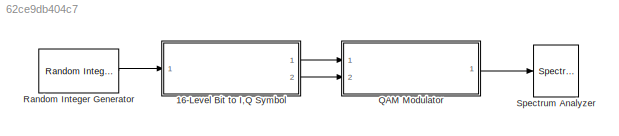
MODEL slx_62ce9db404c7
KIND model
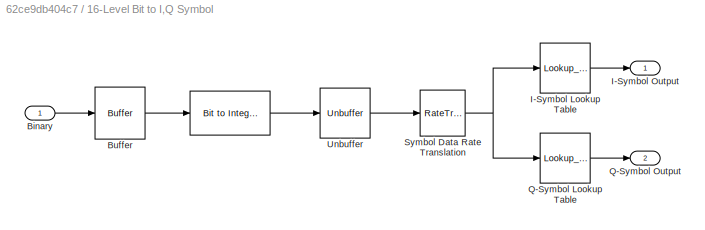
BLOCK [SubSystem] 16-Level Bit to I,Q Symbol
  Ports = [1, 2]
  RequestExecContextInheritance = off
BLOCK [Reference] 16-Level Bit to I,Q Symbol/   REF=commutil2/Bit to Integer
Converter
  Ports = [1, 1]
  SourceBlock = commutil2/Bit to Integer\nConverter
  SourceType = Bit to Integer Converter
  bitOrder = MSB first
  nbits = 4
  outDtype = Inherit via internal rule
  outDtypeSigned = Inherit via internal rule
  signedOutputValues = Unsigned
BLOCK [Inport] 16-Level Bit to I,Q Symbol/Binary
  IconDisplay = Port number
BLOCK [Buffer] 16-Level Bit to I,Q Symbol/Buffer
  N = 4
  TreatMby1Signals = One channel
BLOCK [Lookup_n-D] 16-Level Bit to I,Q Symbol/I-Symbol Lookup Table
  BreakpointsForDimension1 = [0,1,2,3,4,5,6,7,8,9,10,11,12,13,14,15]
  InternalRulePriority = Speed
  NumberOfTableDimensions = 1
  Ports = [1, 1]
  RndMeth = Simplest
  Table = [-1,-3,-1,-3,1,1,3,3,-1,-1,-3,-3,1,3,1,3]
BLOCK [Outport] 16-Level Bit to I,Q Symbol/I-Symbol Output
  IconDisplay = Port number
BLOCK [Lookup_n-D] 16-Level Bit to I,Q Symbol/Q-Symbol Lookup Table
  BreakpointsForDimension1 = [0,1,2,3,4,5,6,7,8,9,10,11,12,13,14,15]
  InternalRulePriority = Speed
  NumberOfTableDimensions = 1
  Ports = [1, 1]
  RndMeth = Simplest
  Table = [1,1,3,3,1,3,1,3,-1,-3,-1,-3,-1,-1,-3,-3]
BLOCK [Outport] 16-Level Bit to I,Q Symbol/Q-Symbol Output
  IconDisplay = Port number
  Port = 2
BLOCK [RateTransition] 16-Level Bit to I,Q Symbol/Symbol Data Rate Translation
  OutPortSampleTime = 4e-3
BLOCK [Unbuffer] 16-Level Bit to I,Q Symbol/Unbuffer
  Ports = [1, 1]
  SampleBasedProcessing = Same as frame based
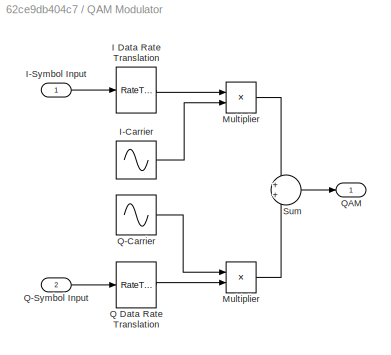
BLOCK [SubSystem] QAM Modulator
  Ports = [2, 1]
  RequestExecContextInheritance = off
BLOCK [Product] QAM Modulator/ Multiplier 
  InputSameDT = off
  OutDataTypeStr = Inherit: Inherit via internal rule
  Ports = [2, 1]
  SaturateOnIntegerOverflow = off
BLOCK [RateTransition] QAM Modulator/I Data Rate Translation
  OutPortSampleTime = 2e-6
BLOCK [Sin] QAM Modulator/I-Carrier
  Amplitude = 5
  Frequency = 40000*pi
  Phase = pi/2
  Ports = [0, 1]
  SampleTime = 2e-6
  VectorParams1D = off
BLOCK [Inport] QAM Modulator/I-Symbol Input
  IconDisplay = Port number
BLOCK [Product] QAM Modulator/Multiplier
  InputSameDT = off
  OutDataTypeStr = Inherit: Inherit via internal rule
  Ports = [2, 1]
  SaturateOnIntegerOverflow = off
BLOCK [RateTransition] QAM Modulator/Q Data Rate Translation
  OutPortSampleTime = 2e-6
BLOCK [Sin] QAM Modulator/Q-Carrier
  Amplitude = 5
  Frequency = 40000*pi
  Ports = [0, 1]
  SampleTime = 2e-6
  VectorParams1D = off
BLOCK [Inport] QAM Modulator/Q-Symbol Input
  IconDisplay = Port number
  Port = 2
BLOCK [Outport] QAM Modulator/QAM
  IconDisplay = Port number
BLOCK [Sum] QAM Modulator/Sum
  IconShape = round
  InputSameDT = off
  OutDataTypeStr = Inherit: Inherit via internal rule
  Ports = [2, 1]
  SaturateOnIntegerOverflow = off
BLOCK [Reference] Random Integer Generator  REF=commrandsrc2/Random Integer
Generator
  Ports = [0, 1]
  SourceBlock = commrandsrc2/Random Integer\nGenerator
  SourceType = Random Integer Generator
  Ts = 1e-3
  frameBased = off
  mul = 2
  orient = off
  outDataType = double
  sampPerFrame = 1
  seed = randseed
BLOCK [SpectrumAnalyzer] Spectrum Analyzer
  Ports = [1]
  ScopeSpecificationString = spbscopes.SpectrumAnalyzerBlockCfg('CurrentConfiguration', extmgr.ConfigurationSet(extmgr.Configuration('Core','General UI',true,'FigureColor',[0.313725490196078 0.313725490196078 0.313725490196078]),extmgr.Configuration('Core','Source UI',true),extmgr.Configuration('Sources','WiredSimulink',true),extmgr.Configuration('Visuals','Spectrum',true,'AxesProperties',struct('Color',[0 0 0],'XColor',[0.68...<+6989ch>
LINE 16-Level Bit to I,Q Symbol/ :1 -> 16-Level Bit to I,Q Symbol/Unbuffer:1
LINE 16-Level Bit to I,Q Symbol/Binary:1 -> 16-Level Bit to I,Q Symbol/Buffer:1
LINE 16-Level Bit to I,Q Symbol/Buffer:1 -> 16-Level Bit to I,Q Symbol/ :1
LINE 16-Level Bit to I,Q Symbol/I-Symbol Lookup Table:1 -> 16-Level Bit to I,Q Symbol/I-Symbol Output:1
LINE 16-Level Bit to I,Q Symbol/Q-Symbol Lookup Table:1 -> 16-Level Bit to I,Q Symbol/Q-Symbol Output:1
NET 16-Level Bit to I,Q Symbol/Symbol Data Rate Translation:1 -> 16-Level Bit to I,Q Symbol/I-Symbol Lookup Table:1, 16-Level Bit to I,Q Symbol/Q-Symbol Lookup Table:1
LINE 16-Level Bit to I,Q Symbol/Unbuffer:1 -> 16-Level Bit to I,Q Symbol/Symbol Data Rate Translation:1
LINE 16-Level Bit to I,Q Symbol:1 -> QAM Modulator:1
LINE 16-Level Bit to I,Q Symbol:2 -> QAM Modulator:2
LINE QAM Modulator/ Multiplier :1 -> QAM Modulator/Sum:2
LINE QAM Modulator/I Data Rate Translation:1 -> QAM Modulator/Multiplier:1
LINE QAM Modulator/I-Carrier:1 -> QAM Modulator/Multiplier:2
LINE QAM Modulator/I-Symbol Input:1 -> QAM Modulator/I Data Rate Translation:1
LINE QAM Modulator/Multiplier:1 -> QAM Modulator/Sum:1
LINE QAM Modulator/Q Data Rate Translation:1 -> QAM Modulator/ Multiplier :2
LINE QAM Modulator/Q-Carrier:1 -> QAM Modulator/ Multiplier :1
LINE QAM Modulator/Q-Symbol Input:1 -> QAM Modulator/Q Data Rate Translation:1
LINE QAM Modulator/Sum:1 -> QAM Modulator/QAM:1
LINE QAM Modulator:1 -> Spectrum Analyzer:1
LINE Random Integer Generator:1 -> 16-Level Bit to I,Q Symbol:1
note: NET lines group one-source signal fan-out (src -> all destinations, sorted); 1:1 wires keep LINE
